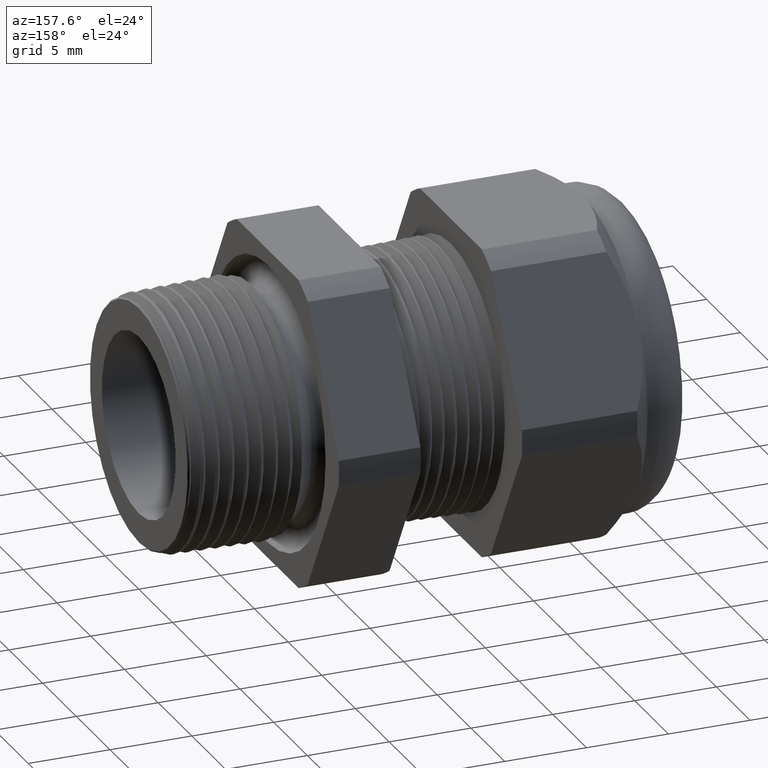
[diagram: clean part render]
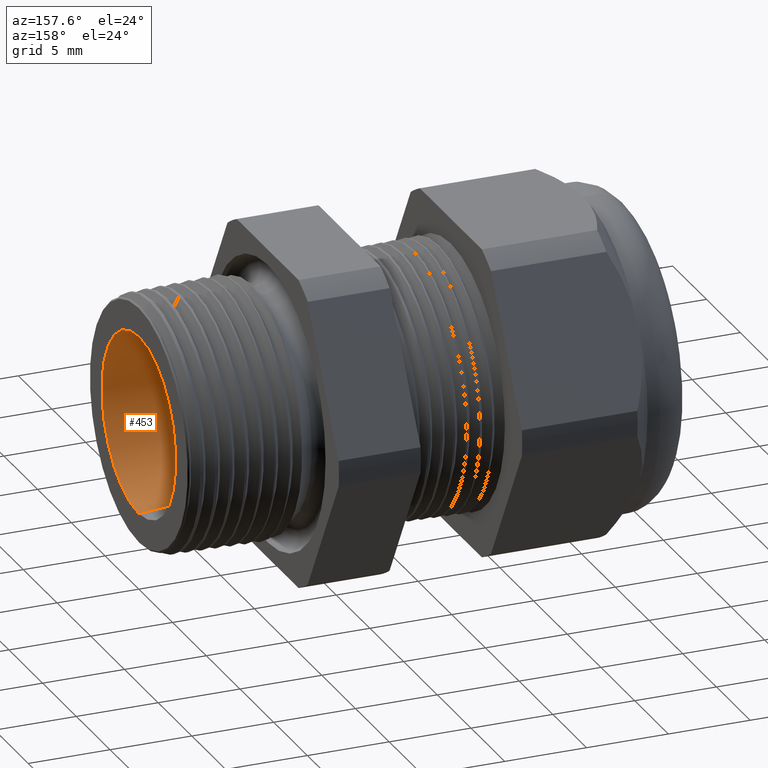
[diagram: same view with one face highlighted and labeled with its STEP entity id]
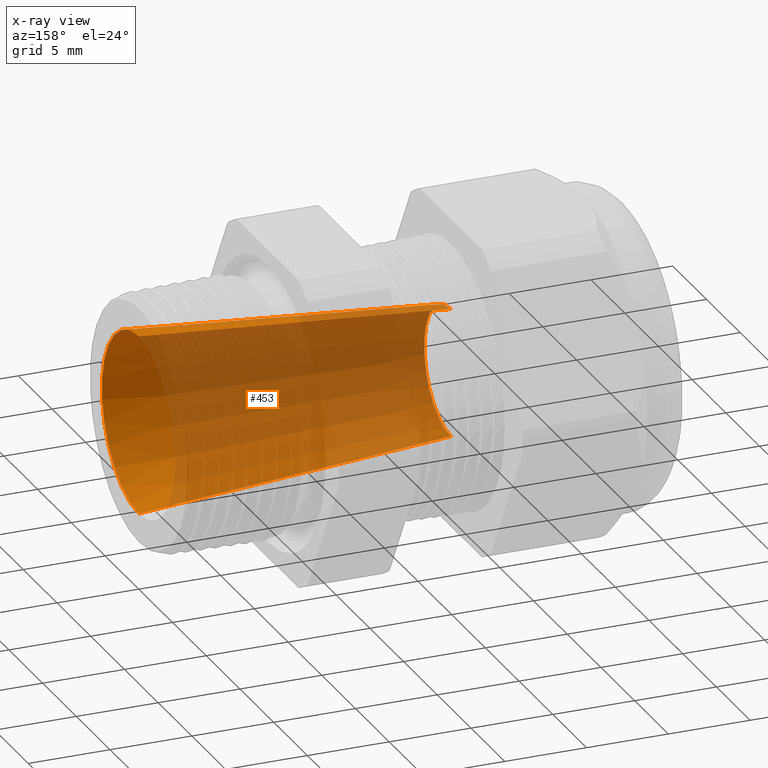
[diagram: x-ray of the same camera — body ghosted, the highlighted face saturated]
A machine part, auxiliary view. The second image highlights one B-rep face of the part: STEP entity #453.
The next image is the same camera in x-ray: the body ghosted, the highlighted face saturated — about 79% of this face is hidden behind the body in this view.
In plain terms, the highlighted conical surface has half-angle 4.594 deg.
Its self-contained STEP definition (entity closure, byte-faithful):
#397 = VERTEX_POINT ( 'NONE', #1677 ) ;
#399 = EDGE_CURVE ( 'NONE', #397, #450, #1676, .T. ) ;
#450 = VERTEX_POINT ( 'NONE', #1792 ) ;
#453 = ADVANCED_FACE ( 'NONE', ( #1787 ), #1786, .F. ) ;
#454 = EDGE_LOOP ( 'NONE', ( #455, #456, #459, #462 ) ) ;
#455 = ORIENTED_EDGE ( 'NONE', *, *, #399, .F. ) ;
#456 = ORIENTED_EDGE ( 'NONE', *, *, #457, .T. ) ;
#457 = EDGE_CURVE ( 'NONE', #397, #458, #1785, .T. ) ;
#458 = VERTEX_POINT ( 'NONE', #1777 ) ;
#459 = ORIENTED_EDGE ( 'NONE', *, *, #460, .T. ) ;
#460 = EDGE_CURVE ( 'NONE', #458, #461, #1776, .T. ) ;
#461 = VERTEX_POINT ( 'NONE', #1771 ) ;
#462 = ORIENTED_EDGE ( 'NONE', *, *, #463, .F. ) ;
#463 = EDGE_CURVE ( 'NONE', #450, #461, #1834, .T. ) ;
#1676 = CIRCLE ( 'NONE', #1740, 0.1550000000000000000 ) ;
#1677 = CARTESIAN_POINT ( 'NONE',  ( -0.7508661417322833900, 2.267665485113262000E-017, 0.1550000000000000000 ) ) ;
#1737 = DIRECTION ( 'NONE',  ( 0.0000000000000000000, 0.0000000000000000000, -1.000000000000000000 ) ) ;
#1738 = DIRECTION ( 'NONE',  ( 1.000000000000000000, 0.0000000000000000000, 0.0000000000000000000 ) ) ;
#1739 = CARTESIAN_POINT ( 'NONE',  ( -0.7508661417322833900, 0.0000000000000000000, 0.0000000000000000000 ) ) ;
#1740 = AXIS2_PLACEMENT_3D ( 'NONE', #1739, #1738, #1737 ) ;
#1771 = CARTESIAN_POINT ( 'NONE',  ( 0.0000000000000000000, 0.0000000000000000000, -0.2153378781036457400 ) ) ;
#1772 = DIRECTION ( 'NONE',  ( 0.0000000000000000000, 0.0000000000000000000, -1.000000000000000000 ) ) ;
#1773 = DIRECTION ( 'NONE',  ( 1.000000000000000000, 0.0000000000000000000, 0.0000000000000000000 ) ) ;
#1774 = CARTESIAN_POINT ( 'NONE',  ( 0.0000000000000000000, 0.0000000000000000000, 0.0000000000000000000 ) ) ;
#1775 = AXIS2_PLACEMENT_3D ( 'NONE', #1774, #1773, #1772 ) ;
#1776 = CIRCLE ( 'NONE', #1775, 0.2153378781036457400 ) ;
#1777 = CARTESIAN_POINT ( 'NONE',  ( 0.0000000000000000000, 2.637128431548127100E-017, 0.2153378781036457400 ) ) ;
#1778 = DIRECTION ( 'NONE',  ( 0.9967868727108976100, 9.809360004160878300E-018, 0.08009950306480641300 ) ) ;
#1779 = VECTOR ( 'NONE', #1778, 39.37007874015748900 ) ;
#1780 = CARTESIAN_POINT ( 'NONE',  ( -0.7508661417322833900, 1.898202538678397300E-017, 0.1550000000000000000 ) ) ;
#1781 = DIRECTION ( 'NONE',  ( 0.0000000000000000000, 0.0000000000000000000, -1.000000000000000000 ) ) ;
#1782 = DIRECTION ( 'NONE',  ( 1.000000000000000000, 0.0000000000000000000, 0.0000000000000000000 ) ) ;
#1783 = CARTESIAN_POINT ( 'NONE',  ( -0.7508661417322833900, 0.0000000000000000000, 0.0000000000000000000 ) ) ;
#1784 = AXIS2_PLACEMENT_3D ( 'NONE', #1783, #1782, #1781 ) ;
#1785 = LINE ( 'NONE', #1780, #1779 ) ;
#1786 = CONICAL_SURFACE ( 'NONE', #1784, 0.1550000000000000000, 0.08018540344487304300 ) ;
#1787 = FACE_OUTER_BOUND ( 'NONE', #454, .T. ) ;
#1792 = CARTESIAN_POINT ( 'NONE',  ( -0.7508661417322833900, 0.0000000000000000000, -0.1550000000000000000 ) ) ;
#1831 = DIRECTION ( 'NONE',  ( 0.9967868727108976100, 0.0000000000000000000, -0.08009950306480641300 ) ) ;
#1832 = VECTOR ( 'NONE', #1831, 39.37007874015748900 ) ;
#1833 = CARTESIAN_POINT ( 'NONE',  ( -0.7508661417322833900, 0.0000000000000000000, -0.1550000000000000000 ) ) ;
#1834 = LINE ( 'NONE', #1833, #1832 ) ;